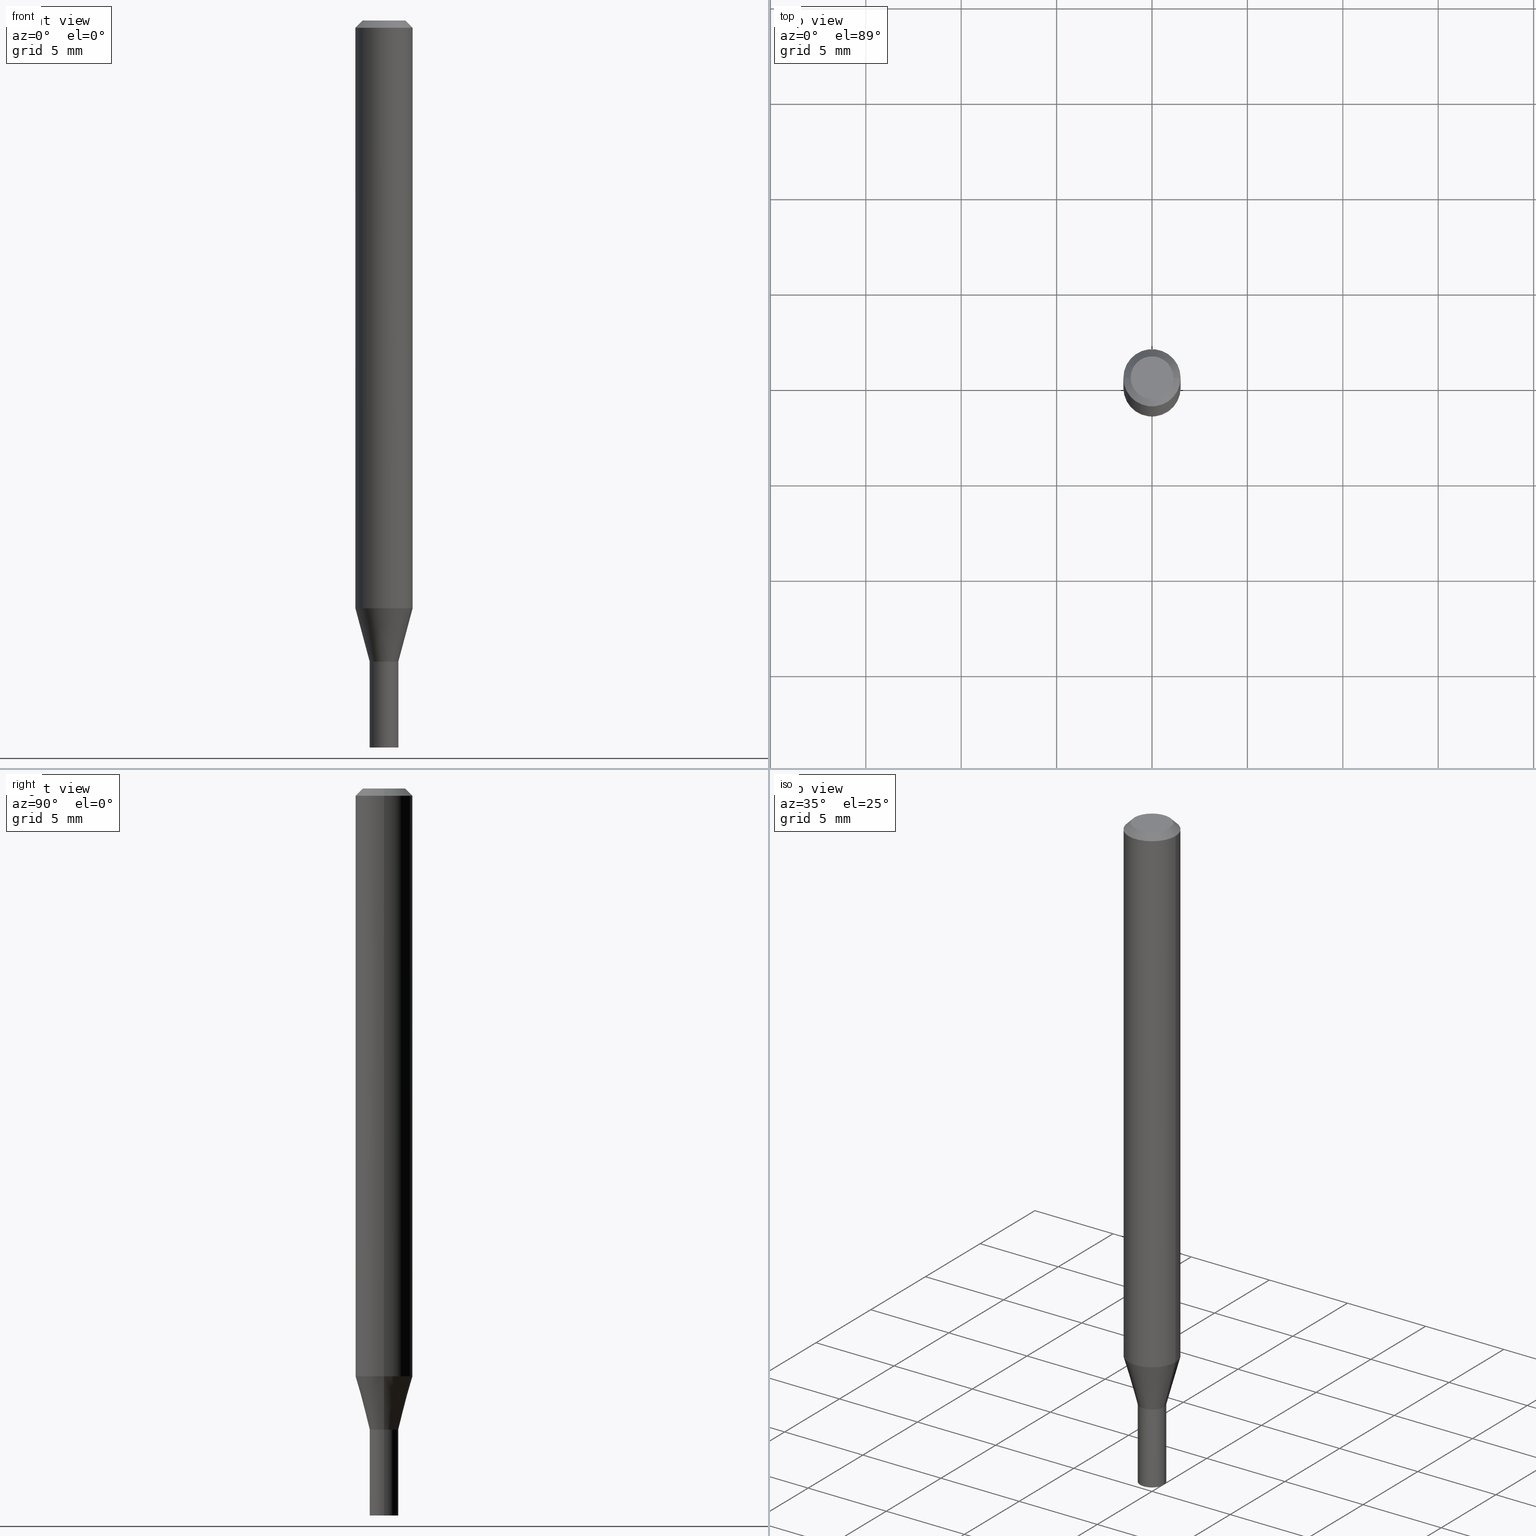
[diagram: canonical four-view strip — front | top / right | iso, engineering-drawing reading convention]
A machine part, canonical four-view strip (front | top / right | iso — engineering-drawing reading convention). The complete STEP part file that produces these views, byte-faithful:
ISO-10303-21;
HEADER;
FILE_DESCRIPTION (( 'STEP AP203' ),
    '1' );
FILE_NAME ('05104.STEP',
    '2024-03-14T17:54:21',
    ( '' ),
    ( '' ),
    'SwSTEP 2.0',
    'SolidWorks 2023',
    '' );
FILE_SCHEMA (( 'CONFIG_CONTROL_DESIGN' ));
ENDSEC;

DATA;
#1 = CARTESIAN_POINT ( 'NONE',  ( 0.000000000000000000, 0.000000000000000000, 0.000000000000000000 ) ) ;
#2 = PERSON_AND_ORGANIZATION ( #327, #109 ) ;
#3 = CARTESIAN_POINT ( 'NONE',  ( -0.02954999999999992355, 2.099653784171090617E-16, -1.453545319170320872E-30 ) ) ;
#4 = PLANE ( 'NONE',  #374 ) ;
#5 = DATE_TIME_ROLE ( 'creation_date' ) ;
#6 = CARTESIAN_POINT ( 'NONE',  ( -0.02954999999999999988, 2.099653784171096041E-16, -1.453545319170324550E-30 ) ) ;
#7 = CARTESIAN_POINT ( 'NONE',  ( 3.668203209277704895E-29, -5.237222008264718177E-15, -1.500000000000000222 ) ) ;
#8 = CIRCLE ( 'NONE', #194, 0.05904999999999999832 ) ;
#9 = CARTESIAN_POINT ( 'NONE',  ( -0.05904999999999999832, 3.599717260347268549E-16, -0.01499999999999999944 ) ) ;
#10 = ORIENTED_EDGE ( 'NONE', *, *, #34, .T. ) ;
#11 = EDGE_CURVE ( 'NONE', #390, #415, #324, .T. ) ;
#12 = DIRECTION ( 'NONE',  ( 1.000000000000000000, -6.982962677686273021E-15, 0.000000000000000000 ) ) ;
#13 = CARTESIAN_POINT ( 'NONE',  ( 3.233643402418606881E-29, -4.616785774352292931E-15, -1.322300000000000253 ) ) ;
#14 = DIRECTION ( 'NONE',  ( 1.000000000000000000, -6.982962677686277755E-15, 0.000000000000000000 ) ) ;
#15 = EDGE_CURVE ( 'NONE', #451, #385, #63, .T. ) ;
#16 = ORIENTED_EDGE ( 'NONE', *, *, #304, .F. ) ;
#17 = CONICAL_SURFACE ( 'NONE', #387, 0.02904999999999999943, 0.7853981633974739252 ) ;
#18 = PRODUCT ( '05104', '05104', '', ( #338 ) ) ;
#19 = FACE_OUTER_BOUND ( 'NONE', #355, .T. ) ;
#20 = EDGE_LOOP ( 'NONE', ( #88, #30, #134, #319 ) ) ;
#21 = FACE_OUTER_BOUND ( 'NONE', #121, .T. ) ;
#22 = VERTEX_POINT ( 'NONE', #60 ) ;
#23 = DIRECTION ( 'NONE',  ( 1.000000000000000000, -6.982962677686265922E-15, 4.876176775795935793E-29 ) ) ;
#24 = VECTOR ( 'NONE', #161, 39.37007874015748143 ) ;
#25 = DIRECTION ( 'NONE',  ( -2.445468806185136597E-29, 3.491481338843145583E-15, 1.000000000000000000 ) ) ;
#26 = ORIENTED_EDGE ( 'NONE', *, *, #148, .T. ) ;
#27 = DIRECTION ( 'NONE',  ( 1.000000000000000000, -6.982962677686280121E-15, 0.000000000000000000 ) ) ;
#28 = DIRECTION ( 'NONE',  ( -2.445468806185136597E-29, 3.491481338843145583E-15, 1.000000000000000000 ) ) ;
#29 = APPROVAL_STATUS ( 'not_yet_approved' ) ;
#30 = ORIENTED_EDGE ( 'NONE', *, *, #221, .T. ) ;
#31 = LOCAL_TIME ( 13, 54, 21.00000000000000000, #408 ) ;
#32 = DATE_TIME_ROLE ( 'classification_date' ) ;
#33 = CYLINDRICAL_SURFACE ( 'NONE', #45, 0.05904999999999999832 ) ;
#34 = EDGE_CURVE ( 'NONE', #392, #174, #58, .T. ) ;
#35 = CARTESIAN_POINT ( 'NONE',  ( 3.234866136821698561E-29, -4.618531515021712857E-15, -1.322800000000000198 ) ) ;
#36 = ORIENTED_EDGE ( 'NONE', *, *, #258, .F. ) ;
#37 = CIRCLE ( 'NONE', #91, 0.04404999999999999888 ) ;
#38 = AXIS2_PLACEMENT_3D ( 'NONE', #239, #48, #383 ) ;
#39 = PERSON_AND_ORGANIZATION ( #327, #109 ) ;
#40 = DIRECTION ( 'NONE',  ( 1.000000000000000000, -6.982962677686280121E-15, 0.000000000000000000 ) ) ;
#41 = DESIGN_CONTEXT ( 'detailed design', #240, 'design' ) ;
#42 = CARTESIAN_POINT ( 'NONE',  ( 0.02954999999999999988, -4.824878062147342468E-15, -1.322800000000000198 ) ) ;
#43 = DIRECTION ( 'NONE',  ( -2.445468806185136597E-29, 3.491481338843145583E-15, 1.000000000000000000 ) ) ;
#44 = ADVANCED_FACE ( 'NONE', ( #251 ), #459, .F. ) ;
#45 = AXIS2_PLACEMENT_3D ( 'NONE', #1, #50, #200 ) ;
#46 = CARTESIAN_POINT ( 'NONE',  ( 2.965631028747970028E-29, -4.234135135389597001E-15, -1.212704501176718130 ) ) ;
#47 = MANIFOLD_SOLID_BREP ( 'Body-Move/Copy2[1]', #130 ) ;
#48 = DIRECTION ( 'NONE',  ( -2.445468806185136597E-29, 3.491481338843145583E-15, 1.000000000000000000 ) ) ;
#49 = PRODUCT_RELATED_PRODUCT_CATEGORY ( 'detail', '', ( #18 ) ) ;
#50 = DIRECTION ( 'NONE',  ( -2.445468806185136597E-29, 3.491481338843145583E-15, 1.000000000000000000 ) ) ;
#51 = ORIENTED_EDGE ( 'NONE', *, *, #455, .F. ) ;
#52 = DIRECTION ( 'NONE',  ( -2.445468806185136597E-29, 3.491481338843145583E-15, 1.000000000000000000 ) ) ;
#53 = EDGE_CURVE ( 'NONE', #65, #197, #54, .T. ) ;
#54 = CIRCLE ( 'NONE', #210, 0.02954999999999999988 ) ;
#55 = ORIENTED_EDGE ( 'NONE', *, *, #258, .T. ) ;
#56 = AXIS2_PLACEMENT_3D ( 'NONE', #378, #193, #199 ) ;
#57 = DIRECTION ( 'NONE',  ( 2.445468806185136597E-29, -3.491481338843145583E-15, -1.000000000000000000 ) ) ;
#58 = LINE ( 'NONE', #98, #380 ) ;
#59 = DIRECTION ( 'NONE',  ( -2.445468806185136597E-29, 3.491481338843145583E-15, 1.000000000000000000 ) ) ;
#60 = CARTESIAN_POINT ( 'NONE',  ( 0.02954999999999999988, -5.443568555390347787E-15, -1.500000000000000222 ) ) ;
#61 = CC_DESIGN_PERSON_AND_ORGANIZATION_ASSIGNMENT ( #230, #431, ( #18 ) ) ;
#62 = CARTESIAN_POINT ( 'NONE',  ( -0.02954999999999992355, -4.111562893263929715E-15, -1.322799999999999976 ) ) ;
#63 = LINE ( 'NONE', #217, #253 ) ;
#64 = CARTESIAN_POINT ( 'NONE',  ( 3.234866136821698561E-29, -4.618531515021712857E-15, -1.322800000000000198 ) ) ;
#65 = VERTEX_POINT ( 'NONE', #285 ) ;
#66 = EDGE_LOOP ( 'NONE', ( #51, #16 ) ) ;
#67 = PERSON_AND_ORGANIZATION_ROLE ( 'classification_officer' ) ;
#68 = DIRECTION ( 'NONE',  ( -2.445468806185136597E-29, 3.491481338843145583E-15, 1.000000000000000000 ) ) ;
#69 = AXIS2_PLACEMENT_3D ( 'NONE', #35, #268, #78 ) ;
#70 = DATE_AND_TIME ( #153, #337 ) ;
#71 = CARTESIAN_POINT ( 'NONE',  ( 0.000000000000000000, 0.000000000000000000, 0.000000000000000000 ) ) ;
#72 = DIRECTION ( 'NONE',  ( 0.000000000000000000, 0.000000000000000000, 1.000000000000000000 ) ) ;
#73 = DIRECTION ( 'NONE',  ( 1.000000000000000000, -6.982962677686261977E-15, 0.000000000000000000 ) ) ;
#74 = APPROVAL_ROLE ( '' ) ;
#75 = FACE_OUTER_BOUND ( 'NONE', #425, .T. ) ;
#76 = VECTOR ( 'NONE', #302, 39.37007874015748143 ) ;
#77 = CALENDAR_DATE ( 2024, 14, 3 ) ;
#78 = DIRECTION ( 'NONE',  ( 1.000000000000000000, -6.982962677686265922E-15, 4.876176775795935793E-29 ) ) ;
#79 = CARTESIAN_POINT ( 'NONE',  ( -0.02954999999999992355, -4.406820395935182785E-15, -1.322300000000000253 ) ) ;
#80 = EDGE_CURVE ( 'NONE', #446, #392, #164, .T. ) ;
#81 = CARTESIAN_POINT ( 'NONE',  ( 0.02954999999999992355, -2.063465471256286490E-16, 1.440910237247695217E-30 ) ) ;
#82 = AXIS2_PLACEMENT_3D ( 'NONE', #265, #336, #294 ) ;
#83 = VECTOR ( 'NONE', #202, 39.37007874015748143 ) ;
#84 = CARTESIAN_POINT ( 'NONE',  ( -0.05904999999999999832, 4.195754854663391478E-16, -2.904631170795521892E-30 ) ) ;
#85 = ORIENTED_EDGE ( 'NONE', *, *, #334, .F. ) ;
#86 = DIRECTION ( 'NONE',  ( 1.000000000000000000, -6.982962677686266711E-15, 4.876176775795936353E-29 ) ) ;
#87 = CC_DESIGN_PERSON_AND_ORGANIZATION_ASSIGNMENT ( #2, #114, ( #171 ) ) ;
#88 = ORIENTED_EDGE ( 'NONE', *, *, #34, .F. ) ;
#89 = LINE ( 'NONE', #84, #314 ) ;
#90 = ORIENTED_EDGE ( 'NONE', *, *, #221, .F. ) ;
#91 = AXIS2_PLACEMENT_3D ( 'NONE', #266, #330, #107 ) ;
#92 = CARTESIAN_POINT ( 'NONE',  ( 3.668203209277705088E-31, -5.237222008264718399E-17, -0.01499999999999999944 ) ) ;
#93 = CC_DESIGN_APPROVAL ( #95, ( #245 ) ) ;
#94 = DIRECTION ( 'NONE',  ( 0.7071067811865656694, -2.468850131082446387E-15, 0.7071067811865294761 ) ) ;
#95 = APPROVAL ( #105, 'UNSPECIFIED' ) ;
#96 = CARTESIAN_POINT ( 'NONE',  ( 3.234866136821698001E-29, -4.618531515021712068E-15, -1.322799999999999976 ) ) ;
#97 = CYLINDRICAL_SURFACE ( 'NONE', #450, 0.02954999999999992355 ) ;
#98 = CARTESIAN_POINT ( 'NONE',  ( -0.02954999999999992355, -4.408566136604602711E-15, -1.322799999999999976 ) ) ;
#99 = ORIENTED_EDGE ( 'NONE', *, *, #15, .T. ) ;
#100 = ORIENTED_EDGE ( 'NONE', *, *, #80, .T. ) ;
#101 = CIRCLE ( 'NONE', #131, 0.02954999999999992355 ) ;
#102 = ADVANCED_FACE ( 'NONE', ( #113 ), #4, .F. ) ;
#103 = ORIENTED_EDGE ( 'NONE', *, *, #112, .T. ) ;
#104 = EDGE_CURVE ( 'NONE', #415, #390, #37, .T. ) ;
#105 = APPROVAL_STATUS ( 'not_yet_approved' ) ;
#106 = FACE_OUTER_BOUND ( 'NONE', #66, .T. ) ;
#107 = DIRECTION ( 'NONE',  ( 1.000000000000000000, -6.982962677686265922E-15, 4.819687581474398999E-29 ) ) ;
#108 = VECTOR ( 'NONE', #273, 39.37007874015748143 ) ;
#109 = ORGANIZATION ( 'UNSPECIFIED', 'UNSPECIFIED', '' ) ;
#110 = PERSON_AND_ORGANIZATION ( #327, #109 ) ;
#111 = DIRECTION ( 'NONE',  ( 1.000000000000000000, -6.982962677686266711E-15, 4.876176775795935793E-29 ) ) ;
#112 = EDGE_CURVE ( 'NONE', #358, #320, #224, .T. ) ;
#113 = FACE_OUTER_BOUND ( 'NONE', #135, .T. ) ;
#114 = PERSON_AND_ORGANIZATION_ROLE ( 'design_supplier' ) ;
#115 = FACE_OUTER_BOUND ( 'NONE', #361, .T. ) ;
#116 = AXIS2_PLACEMENT_3D ( 'NONE', #356, #170, #23 ) ;
#117 = AXIS2_PLACEMENT_3D ( 'NONE', #196, #420, #175 ) ;
#118 = DIRECTION ( 'NONE',  ( 2.438088387897960049E-29, -3.491481338843145188E-15, -1.000000000000000000 ) ) ;
#119 = CARTESIAN_POINT ( 'NONE',  ( 0.05904999999999999832, -4.574846268510561447E-16, -0.01499999999999999944 ) ) ;
#120 = DIRECTION ( 'NONE',  ( -0.7071067811865656694, 7.493145998870420424E-15, 0.7071067811865294761 ) ) ;
#121 = EDGE_LOOP ( 'NONE', ( #139, #255, #394, #127 ) ) ;
#122 = CC_DESIGN_APPROVAL ( #267, ( #171 ) ) ;
#123 = CARTESIAN_POINT ( 'NONE',  ( 3.234866136821698561E-29, -4.618531515021712857E-15, -1.322800000000000198 ) ) ;
#124 = ORIENTED_EDGE ( 'NONE', *, *, #207, .F. ) ;
#125 = PRODUCT_DEFINITION ( 'UNKNOWN', '', #171, #41 ) ;
#126 = CARTESIAN_POINT ( 'NONE',  ( 0.000000000000000000, 0.000000000000000000, 0.000000000000000000 ) ) ;
#127 = ORIENTED_EDGE ( 'NONE', *, *, #15, .F. ) ;
#128 =( CONVERSION_BASED_UNIT ( 'INCH', #216 ) LENGTH_UNIT ( ) NAMED_UNIT ( #212 ) );
#129 = ORIENTED_EDGE ( 'NONE', *, *, #112, .F. ) ;
#130 = CLOSED_SHELL ( 'NONE', ( #155, #44, #157, #344 ) ) ;
#131 = AXIS2_PLACEMENT_3D ( 'NONE', #13, #447, #277 ) ;
#132 = EDGE_LOOP ( 'NONE', ( #204, #215, #144, #461 ) ) ;
#133 = CARTESIAN_POINT ( 'NONE',  ( 3.234866136821698561E-29, -4.618531515021712857E-15, -1.322800000000000198 ) ) ;
#134 = ORIENTED_EDGE ( 'NONE', *, *, #323, .T. ) ;
#135 = EDGE_LOOP ( 'NONE', ( #421, #282 ) ) ;
#136 = CARTESIAN_POINT ( 'NONE',  ( 3.233643402418606881E-29, -4.616785774352292931E-15, -1.322300000000000253 ) ) ;
#137 = ORIENTED_EDGE ( 'NONE', *, *, #261, .T. ) ;
#138 = ADVANCED_FACE ( 'NONE', ( #182 ), #402, .T. ) ;
#139 = ORIENTED_EDGE ( 'NONE', *, *, #455, .T. ) ;
#140 = AXIS2_PLACEMENT_3D ( 'NONE', #438, #232, #441 ) ;
#141 = AXIS2_PLACEMENT_3D ( 'NONE', #151, #72, #333 ) ;
#142 = ADVANCED_FACE ( 'NONE', ( #115 ), #228, .T. ) ;
#143 = COORDINATED_UNIVERSAL_TIME_OFFSET ( 5, 0, .BEHIND. ) ;
#144 = ORIENTED_EDGE ( 'NONE', *, *, #311, .T. ) ;
#145 = DATE_AND_TIME ( #329, #303 ) ;
#146 = DIRECTION ( 'NONE',  ( 1.000000000000000000, -6.982962677686266711E-15, 4.876176775795935793E-29 ) ) ;
#147 = COORDINATED_UNIVERSAL_TIME_OFFSET ( 5, 0, .BEHIND. ) ;
#148 = EDGE_CURVE ( 'NONE', #392, #360, #262, .T. ) ;
#149 = DIRECTION ( 'NONE',  ( -2.445468806185136597E-29, 3.491481338843145583E-15, 1.000000000000000000 ) ) ;
#150 = AXIS2_PLACEMENT_3D ( 'NONE', #435, #432, #146 ) ;
#151 = CARTESIAN_POINT ( 'NONE',  ( 0.000000000000000000, 0.000000000000000000, 0.000000000000000000 ) ) ;
#152 = DIRECTION ( 'NONE',  ( -2.445468806185136877E-29, 3.491481338843145188E-15, 1.000000000000000000 ) ) ;
#153 = CALENDAR_DATE ( 2024, 14, 3 ) ;
#154 = DIRECTION ( 'NONE',  ( -2.445468806185136877E-29, 3.491481338843145188E-15, 1.000000000000000000 ) ) ;
#155 = ADVANCED_FACE ( 'NONE', ( #75 ), #227, .T. ) ;
#156 = AXIS2_PLACEMENT_3D ( 'NONE', #71, #368, #111 ) ;
#157 = ADVANCED_FACE ( 'NONE', ( #404 ), #190, .T. ) ;
#158 = CONICAL_SURFACE ( 'NONE', #56, 0.05904999999999999832, 0.7853981633974593812 ) ;
#159 = FACE_OUTER_BOUND ( 'NONE', #291, .T. ) ;
#160 = ORIENTED_EDGE ( 'NONE', *, *, #246, .F. ) ;
#161 = DIRECTION ( 'NONE',  ( -2.445468806185136877E-29, 3.491481338843145188E-15, 1.000000000000000000 ) ) ;
#162 = CARTESIAN_POINT ( 'NONE',  ( 0.05904999999999999832, -4.647161662000212105E-16, -0.01499999999999999944 ) ) ;
#163 = EDGE_CURVE ( 'NONE', #426, #22, #187, .T. ) ;
#164 = CIRCLE ( 'NONE', #448, 0.02954999999999992355 ) ;
#165 = CIRCLE ( 'NONE', #117, 0.05904999999999999832 ) ;
#166 = FACE_OUTER_BOUND ( 'NONE', #350, .T. ) ;
#167 = EDGE_CURVE ( 'NONE', #209, #320, #8, .T. ) ;
#168 = ORIENTED_EDGE ( 'NONE', *, *, #167, .T. ) ;
#169 =( NAMED_UNIT ( * ) PLANE_ANGLE_UNIT ( ) SI_UNIT ( $, .RADIAN. ) );
#170 = DIRECTION ( 'NONE',  ( -2.438088387897960049E-29, 3.491481338843145188E-15, 1.000000000000000000 ) ) ;
#171 = PRODUCT_DEFINITION_FORMATION_WITH_SPECIFIED_SOURCE ( 'ANY', '', #18, .NOT_KNOWN. ) ;
#172 = CARTESIAN_POINT ( 'NONE',  ( 3.234866136821698561E-29, -4.618531515021712857E-15, -1.322800000000000198 ) ) ;
#173 = DIRECTION ( 'NONE',  ( 1.000000000000000000, -6.982962677686277755E-15, 0.000000000000000000 ) ) ;
#174 = VERTEX_POINT ( 'NONE', #339 ) ;
#175 = DIRECTION ( 'NONE',  ( 1.000000000000000000, -6.982962677686266711E-15, 0.000000000000000000 ) ) ;
#176 = EDGE_CURVE ( 'NONE', #426, #65, #301, .T. ) ;
#177 = DIRECTION ( 'NONE',  ( 1.000000000000000000, -6.982962677686265922E-15, 4.819687581474398999E-29 ) ) ;
#178 = EDGE_LOOP ( 'NONE', ( #419, #247, #256, #168 ) ) ;
#179 = CIRCLE ( 'NONE', #275, 0.02954999999999999988 ) ;
#180 = AXIS2_PLACEMENT_3D ( 'NONE', #345, #118, #306 ) ;
#181 = COORDINATED_UNIVERSAL_TIME_OFFSET ( 5, 0, .BEHIND. ) ;
#182 = FACE_OUTER_BOUND ( 'NONE', #20, .T. ) ;
#183 = PERSON_AND_ORGANIZATION ( #327, #109 ) ;
#184 = CARTESIAN_POINT ( 'NONE',  ( 0.05904999999999999832, -4.123439461173740327E-16, 2.879382386107500220E-30 ) ) ;
#185 = CALENDAR_DATE ( 2024, 14, 3 ) ;
#186 = DIRECTION ( 'NONE',  ( -2.445468806185136597E-29, 3.491481338843145583E-15, 1.000000000000000000 ) ) ;
#187 = CIRCLE ( 'NONE', #362, 0.02954999999999999988 ) ;
#188 = APPROVAL_PERSON_ORGANIZATION ( #39, #428, #74 ) ;
#189 = DATE_AND_TIME ( #185, #276 ) ;
#190 = CYLINDRICAL_SURFACE ( 'NONE', #156, 0.02954999999999999988 ) ;
#191 = CARTESIAN_POINT ( 'NONE',  ( 3.075995059520799729E-16, 0.04404999999999999888, -3.177616157090649282E-16 ) ) ;
#192 = ADVANCED_FACE ( 'NONE', ( #106 ), #377, .F. ) ;
#193 = DIRECTION ( 'NONE',  ( 2.445468806185136597E-29, -3.491481338843145583E-15, -1.000000000000000000 ) ) ;
#194 = AXIS2_PLACEMENT_3D ( 'NONE', #406, #371, #375 ) ;
#195 = AXIS2_PLACEMENT_3D ( 'NONE', #64, #391, #396 ) ;
#196 = CARTESIAN_POINT ( 'NONE',  ( 3.668203209277705088E-31, -5.237222008264718399E-17, -0.01499999999999999944 ) ) ;
#197 = VERTEX_POINT ( 'NONE', #42 ) ;
#198 = CC_DESIGN_DATE_AND_TIME_ASSIGNMENT ( #257, #5, ( #125 ) ) ;
#199 = DIRECTION ( 'NONE',  ( -1.000000000000000000, 6.982962677686266711E-15, 0.000000000000000000 ) ) ;
#200 = DIRECTION ( 'NONE',  ( 1.000000000000000000, -6.982962677686266711E-15, 4.876176775795936353E-29 ) ) ;
#201 =( GEOMETRIC_REPRESENTATION_CONTEXT ( 3 ) GLOBAL_UNCERTAINTY_ASSIGNED_CONTEXT ( ( #366 ) ) GLOBAL_UNIT_ASSIGNED_CONTEXT ( ( #128, #169, #456 ) ) REPRESENTATION_CONTEXT ( 'NONE', 'WORKASPACE' ) );
#202 = DIRECTION ( 'NONE',  ( -0.7071067811865553443, 2.468850131082339102E-15, -0.7071067811865396902 ) ) ;
#203 = ORIENTED_EDGE ( 'NONE', *, *, #422, .T. ) ;
#204 = ORIENTED_EDGE ( 'NONE', *, *, #176, .F. ) ;
#205 = CARTESIAN_POINT ( 'NONE',  ( 0.02904999999999999943, -4.821386580808499461E-15, -1.322800000000000198 ) ) ;
#206 = DIRECTION ( 'NONE',  ( -0.2588190451025215721, 5.211531920934551831E-15, 0.9659258262890679791 ) ) ;
#207 = EDGE_CURVE ( 'NONE', #22, #426, #179, .T. ) ;
#208 = DIRECTION ( 'NONE',  ( -1.000000000000000000, 6.982962677686266711E-15, 0.000000000000000000 ) ) ;
#209 = VERTEX_POINT ( 'NONE', #259 ) ;
#210 = AXIS2_PLACEMENT_3D ( 'NONE', #172, #313, #457 ) ;
#211 = DIRECTION ( 'NONE',  ( -2.445468806185136597E-29, 3.491481338843145583E-15, 1.000000000000000000 ) ) ;
#212 = DIMENSIONAL_EXPONENTS ( 1.000000000000000000, 0.000000000000000000, 0.000000000000000000, 0.000000000000000000, 0.000000000000000000, 0.000000000000000000, 0.000000000000000000 ) ;
#213 = AXIS2_PLACEMENT_3D ( 'NONE', #46, #52, #12 ) ;
#214 = CARTESIAN_POINT ( 'NONE',  ( 8.019272414352406998E-45, -1.144939568028632061E-30, -3.279237254660487495E-16 ) ) ;
#215 = ORIENTED_EDGE ( 'NONE', *, *, #163, .T. ) ;
#216 = LENGTH_MEASURE_WITH_UNIT ( LENGTH_MEASURE( 0.02539999999999999897 ), #398 );
#217 = CARTESIAN_POINT ( 'NONE',  ( 0.02904999999999999943, -4.821386580808499461E-15, -1.322800000000000198 ) ) ;
#218 = APPROVAL_ROLE ( '' ) ;
#219 = CLOSED_SHELL ( 'NONE', ( #369, #417, #281, #226, #142, #138, #357, #434, #102, #192, #279, #442 ) ) ;
#220 = DIRECTION ( 'NONE',  ( 1.000000000000000000, -6.982962677686280121E-15, 0.000000000000000000 ) ) ;
#221 = EDGE_CURVE ( 'NONE', #392, #446, #335, .T. ) ;
#222 = COORDINATED_UNIVERSAL_TIME_OFFSET ( 5, 0, .BEHIND. ) ;
#223 = DIRECTION ( 'NONE',  ( -2.445468806185136877E-29, 3.491481338843145188E-15, 1.000000000000000000 ) ) ;
#224 = LINE ( 'NONE', #184, #386 ) ;
#225 = ORIENTED_EDGE ( 'NONE', *, *, #466, .T. ) ;
#226 = ADVANCED_FACE ( 'NONE', ( #365 ), #33, .T. ) ;
#227 = CYLINDRICAL_SURFACE ( 'NONE', #150, 0.02954999999999999988 ) ;
#228 = CONICAL_SURFACE ( 'NONE', #82, 0.02954999999999992355, 0.2617993877991502960 ) ;
#229 = CONICAL_SURFACE ( 'NONE', #38, 0.02904999999999999943, 0.7853981633974739252 ) ;
#230 = PERSON_AND_ORGANIZATION ( #327, #109 ) ;
#231 = EDGE_CURVE ( 'NONE', #454, #360, #382, .T. ) ;
#232 = DIRECTION ( 'NONE',  ( -2.445468806185136597E-29, 3.491481338843145583E-15, 1.000000000000000000 ) ) ;
#233 = FACE_OUTER_BOUND ( 'NONE', #278, .T. ) ;
#234 = CARTESIAN_POINT ( 'NONE',  ( 0.02954999999999992355, -4.824878062147340890E-15, -1.322799999999999976 ) ) ;
#235 = ORIENTED_EDGE ( 'NONE', *, *, #148, .F. ) ;
#236 = CC_DESIGN_PERSON_AND_ORGANIZATION_ASSIGNMENT ( #110, #67, ( #245 ) ) ;
#237 = AXIS2_PLACEMENT_3D ( 'NONE', #348, #271, #241 ) ;
#238 = APPROVAL_PERSON_ORGANIZATION ( #325, #95, #364 ) ;
#239 = CARTESIAN_POINT ( 'NONE',  ( 3.234866136821698561E-29, -4.618531515021712857E-15, -1.322800000000000198 ) ) ;
#240 = APPLICATION_CONTEXT ( 'configuration controlled 3d designs of mechanical parts and assemblies' ) ;
#241 = DIRECTION ( 'NONE',  ( 1.000000000000000000, -6.982962677686273021E-15, 0.000000000000000000 ) ) ;
#242 = CARTESIAN_POINT ( 'NONE',  ( -0.02904999999999999943, -4.412118850283403609E-15, -1.322800000000000198 ) ) ;
#243 = EDGE_LOOP ( 'NONE', ( #462, #289, #274, #129 ) ) ;
#244 = CIRCLE ( 'NONE', #263, 0.02904999999999999943 ) ;
#245 = SECURITY_CLASSIFICATION ( '', '', #296 ) ;
#246 = EDGE_CURVE ( 'NONE', #174, #209, #89, .T. ) ;
#247 = ORIENTED_EDGE ( 'NONE', *, *, #104, .F. ) ;
#248 = CARTESIAN_POINT ( 'NONE',  ( 0.04404999999999999888, -3.798447818264465995E-16, -3.279237254660463336E-16 ) ) ;
#249 = ORIENTED_EDGE ( 'NONE', *, *, #304, .T. ) ;
#250 = DIRECTION ( 'NONE',  ( -2.445468806185136597E-29, 3.491481338843145583E-15, 1.000000000000000000 ) ) ;
#251 = FACE_OUTER_BOUND ( 'NONE', #286, .T. ) ;
#252 = ORIENTED_EDGE ( 'NONE', *, *, #316, .T. ) ;
#253 = VECTOR ( 'NONE', #94, 39.37007874015748143 ) ;
#254 = AXIS2_PLACEMENT_3D ( 'NONE', #136, #59, #27 ) ;
#255 = ORIENTED_EDGE ( 'NONE', *, *, #231, .T. ) ;
#256 = ORIENTED_EDGE ( 'NONE', *, *, #334, .T. ) ;
#257 = DATE_AND_TIME ( #437, #410 ) ;
#258 = EDGE_CURVE ( 'NONE', #446, #385, #280, .T. ) ;
#259 = CARTESIAN_POINT ( 'NONE',  ( -0.05904999999999999832, -1.723678192269782942E-15, -0.01499999999999999944 ) ) ;
#260 = VECTOR ( 'NONE', #120, 39.37007874015748143 ) ;
#261 = EDGE_CURVE ( 'NONE', #174, #358, #436, .T. ) ;
#262 = LINE ( 'NONE', #3, #409 ) ;
#263 = AXIS2_PLACEMENT_3D ( 'NONE', #393, #211, #173 ) ;
#264 = DATE_AND_TIME ( #77, #31 ) ;
#265 = CARTESIAN_POINT ( 'NONE',  ( 3.234866136821698001E-29, -4.618531515021712068E-15, -1.322799999999999976 ) ) ;
#266 = CARTESIAN_POINT ( 'NONE',  ( 8.019272414352406998E-45, -1.144939568028632061E-30, -3.279237254660487495E-16 ) ) ;
#267 = APPROVAL ( #29, 'UNSPECIFIED' ) ;
#268 = DIRECTION ( 'NONE',  ( -2.438088387897960049E-29, 3.491481338843145188E-15, 1.000000000000000000 ) ) ;
#269 = CIRCLE ( 'NONE', #195, 0.02954999999999999988 ) ;
#270 = CARTESIAN_POINT ( 'NONE',  ( 0.000000000000000000, 0.000000000000000000, 0.000000000000000000 ) ) ;
#271 = DIRECTION ( 'NONE',  ( -2.445468806185136597E-29, 3.491481338843145583E-15, 1.000000000000000000 ) ) ;
#272 = CC_DESIGN_DATE_AND_TIME_ASSIGNMENT ( #264, #32, ( #245 ) ) ;
#273 = DIRECTION ( 'NONE',  ( -2.445468806185136877E-29, 3.491481338843145188E-15, 1.000000000000000000 ) ) ;
#274 = ORIENTED_EDGE ( 'NONE', *, *, #389, .F. ) ;
#275 = AXIS2_PLACEMENT_3D ( 'NONE', #7, #332, #340 ) ;
#276 = LOCAL_TIME ( 13, 54, 21.00000000000000000, #222 ) ;
#277 = DIRECTION ( 'NONE',  ( 1.000000000000000000, -6.982962677686280121E-15, 0.000000000000000000 ) ) ;
#278 = EDGE_LOOP ( 'NONE', ( #90, #26, #252, #36 ) ) ;
#279 = ADVANCED_FACE ( 'NONE', ( #159 ), #229, .T. ) ;
#280 = LINE ( 'NONE', #81, #108 ) ;
#281 = ADVANCED_FACE ( 'NONE', ( #414 ), #158, .T. ) ;
#282 = ORIENTED_EDGE ( 'NONE', *, *, #11, .T. ) ;
#283 = DIRECTION ( 'NONE',  ( 1.000000000000000000, -6.982962677686266711E-15, 4.876176775795935793E-29 ) ) ;
#284 = AXIS2_PLACEMENT_3D ( 'NONE', #214, #28, #177 ) ;
#285 = CARTESIAN_POINT ( 'NONE',  ( -0.02954999999999999988, -4.717911383226106554E-15, -1.322800000000000198 ) ) ;
#286 = EDGE_LOOP ( 'NONE', ( #124, #346 ) ) ;
#287 = ORIENTED_EDGE ( 'NONE', *, *, #328, .T. ) ;
#288 = FACE_OUTER_BOUND ( 'NONE', #354, .T. ) ;
#289 = ORIENTED_EDGE ( 'NONE', *, *, #246, .T. ) ;
#290 = PERSON_AND_ORGANIZATION_ROLE ( 'creator' ) ;
#291 = EDGE_LOOP ( 'NONE', ( #427, #249, #99, #423 ) ) ;
#292 = EDGE_CURVE ( 'NONE', #358, #174, #376, .T. ) ;
#293 = APPROVAL_DATE_TIME ( #145, #95 ) ;
#294 = DIRECTION ( 'NONE',  ( 1.000000000000000000, -6.982962677686280121E-15, 0.000000000000000000 ) ) ;
#295 = APPLICATION_CONTEXT ( 'configuration controlled 3d designs of mechanical parts and assemblies' ) ;
#296 = SECURITY_CLASSIFICATION_LEVEL ( 'unclassified' ) ;
#297 = VECTOR ( 'NONE', #154, 39.37007874015748143 ) ;
#298 = VECTOR ( 'NONE', #307, 39.37007874015748143 ) ;
#299 = CARTESIAN_POINT ( 'NONE',  ( 3.668203209277704895E-29, -5.237222008264718177E-15, -1.500000000000000222 ) ) ;
#300 = APPROVAL_DATE_TIME ( #70, #267 ) ;
#301 = LINE ( 'NONE', #6, #297 ) ;
#302 = DIRECTION ( 'NONE',  ( 0.2588190451025215721, 1.565188264969619995E-15, 0.9659258262890679791 ) ) ;
#303 = LOCAL_TIME ( 13, 54, 21.00000000000000000, #181 ) ;
#304 = EDGE_CURVE ( 'NONE', #454, #451, #343, .T. ) ;
#305 = LINE ( 'NONE', #234, #76 ) ;
#306 = DIRECTION ( 'NONE',  ( -1.000000000000000000, 6.982962677686265922E-15, -4.876176775795935793E-29 ) ) ;
#307 = DIRECTION ( 'NONE',  ( 0.7071067811865553443, -7.319954787623282867E-15, -0.7071067811865396902 ) ) ;
#308 = AXIS2_PLACEMENT_3D ( 'NONE', #401, #68, #220 ) ;
#309 = AXIS2_PLACEMENT_3D ( 'NONE', #126, #342, #412 ) ;
#310 = CARTESIAN_POINT ( 'NONE',  ( 0.05904999999999999832, -4.646479081506971132E-15, -1.212704501176718130 ) ) ;
#311 = EDGE_CURVE ( 'NONE', #22, #197, #347, .T. ) ;
#312 = CARTESIAN_POINT ( 'NONE',  ( -0.02954999999999999988, -4.717911383226106554E-15, -1.500000000000000222 ) ) ;
#313 = DIRECTION ( 'NONE',  ( -2.445468806185136597E-29, 3.491481338843145583E-15, 1.000000000000000000 ) ) ;
#314 = VECTOR ( 'NONE', #353, 39.37007874015748143 ) ;
#315 = CIRCLE ( 'NONE', #254, 0.02954999999999992355 ) ;
#316 = EDGE_CURVE ( 'NONE', #360, #385, #101, .T. ) ;
#317 = CARTESIAN_POINT ( 'NONE',  ( 0.02954999999999992355, -4.824878062147340890E-15, -1.322799999999999976 ) ) ;
#318 = ORIENTED_EDGE ( 'NONE', *, *, #311, .F. ) ;
#319 = ORIENTED_EDGE ( 'NONE', *, *, #261, .F. ) ;
#320 = VERTEX_POINT ( 'NONE', #162 ) ;
#321 = CARTESIAN_POINT ( 'NONE',  ( 0.000000000000000000, 0.000000000000000000, 0.000000000000000000 ) ) ;
#322 = ORIENTED_EDGE ( 'NONE', *, *, #422, .F. ) ;
#323 = EDGE_CURVE ( 'NONE', #446, #358, #305, .T. ) ;
#324 = CIRCLE ( 'NONE', #284, 0.04404999999999999888 ) ;
#325 = PERSON_AND_ORGANIZATION ( #327, #109 ) ;
#326 = ORIENTED_EDGE ( 'NONE', *, *, #207, .T. ) ;
#327 = PERSON ( 'UNSPECIFIED', 'UNSPECIFIED', 'UNSPECIFIED', ('UNSPECIFIED'), ('UNSPECIFIED'), ('UNSPECIFIED') ) ;
#328 = EDGE_CURVE ( 'NONE', #390, #320, #443, .T. ) ;
#329 = CALENDAR_DATE ( 2024, 14, 3 ) ;
#330 = DIRECTION ( 'NONE',  ( -2.445468806185136597E-29, 3.491481338843145583E-15, 1.000000000000000000 ) ) ;
#331 = PERSON_AND_ORGANIZATION ( #327, #109 ) ;
#332 = DIRECTION ( 'NONE',  ( -2.445468806185136597E-29, 3.491481338843145583E-15, 1.000000000000000000 ) ) ;
#333 = DIRECTION ( 'NONE',  ( 1.000000000000000000, 0.000000000000000000, 0.000000000000000000 ) ) ;
#334 = EDGE_CURVE ( 'NONE', #415, #209, #384, .T. ) ;
#335 = CIRCLE ( 'NONE', #308, 0.02954999999999992355 ) ;
#336 = DIRECTION ( 'NONE',  ( -2.445468806185136597E-29, 3.491481338843145583E-15, 1.000000000000000000 ) ) ;
#337 = LOCAL_TIME ( 13, 54, 21.00000000000000000, #143 ) ;
#338 = MECHANICAL_CONTEXT ( 'NONE', #295, 'mechanical' ) ;
#339 = CARTESIAN_POINT ( 'NONE',  ( -0.05904999999999999832, -3.814559649923256719E-15, -1.212704501176718130 ) ) ;
#340 = DIRECTION ( 'NONE',  ( 1.000000000000000000, -6.982962677686261977E-15, 0.000000000000000000 ) ) ;
#341 = CC_DESIGN_PERSON_AND_ORGANIZATION_ASSIGNMENT ( #440, #290, ( #171 ) ) ;
#342 = DIRECTION ( 'NONE',  ( -2.445468806185136597E-29, 3.491481338843145583E-15, 1.000000000000000000 ) ) ;
#343 = CIRCLE ( 'NONE', #416, 0.02904999999999999943 ) ;
#344 = ADVANCED_FACE ( 'NONE', ( #19 ), #445, .F. ) ;
#345 = CARTESIAN_POINT ( 'NONE',  ( 2.063465471256615347E-16, 0.02954999999999538204, -1.322800000000000198 ) ) ;
#346 = ORIENTED_EDGE ( 'NONE', *, *, #163, .F. ) ;
#347 = LINE ( 'NONE', #444, #24 ) ;
#348 = CARTESIAN_POINT ( 'NONE',  ( 2.965631028747970028E-29, -4.234135135389597001E-15, -1.212704501176718130 ) ) ;
#349 = CC_DESIGN_PERSON_AND_ORGANIZATION_ASSIGNMENT ( #331, #405, ( #125 ) ) ;
#350 = EDGE_LOOP ( 'NONE', ( #160, #137, #103, #399 ) ) ;
#351 = CONICAL_SURFACE ( 'NONE', #458, 0.05904999999999999832, 0.7853981633974593812 ) ;
#352 = ADVANCED_BREP_SHAPE_REPRESENTATION ( '05104', ( #47, #367, #141 ), #201 ) ;
#353 = DIRECTION ( 'NONE',  ( -2.445468806185136877E-29, 3.491481338843145188E-15, 1.000000000000000000 ) ) ;
#354 = EDGE_LOOP ( 'NONE', ( #235, #465, #55, #225 ) ) ;
#355 = EDGE_LOOP ( 'NONE', ( #203, #413 ) ) ;
#356 = CARTESIAN_POINT ( 'NONE',  ( 3.576687321579069994E-29, -5.368277968210015545E-15, -1.500000000000000222 ) ) ;
#357 = ADVANCED_FACE ( 'NONE', ( #166 ), #418, .T. ) ;
#358 = VERTEX_POINT ( 'NONE', #310 ) ;
#359 = CARTESIAN_POINT ( 'NONE',  ( -0.02904999999999999943, -4.409469623109293197E-15, -1.322800000000000198 ) ) ;
#360 = VERTEX_POINT ( 'NONE', #79 ) ;
#361 = EDGE_LOOP ( 'NONE', ( #100, #10, #430, #453 ) ) ;
#362 = AXIS2_PLACEMENT_3D ( 'NONE', #299, #149, #73 ) ;
#363 = CC_DESIGN_SECURITY_CLASSIFICATION ( #245, ( #171 ) ) ;
#364 = APPROVAL_ROLE ( '' ) ;
#365 = FACE_OUTER_BOUND ( 'NONE', #243, .T. ) ;
#366 = UNCERTAINTY_MEASURE_WITH_UNIT (LENGTH_MEASURE( 1.000000000000000082E-05 ), #128, 'distance_accuracy_value', 'NONE');
#367 = MANIFOLD_SOLID_BREP ( 'Body-Move/Copy2[2]', #219 ) ;
#368 = DIRECTION ( 'NONE',  ( -2.445468806185136597E-29, 3.491481338843145583E-15, 1.000000000000000000 ) ) ;
#369 = ADVANCED_FACE ( 'NONE', ( #233 ), #452, .F. ) ;
#370 = APPROVAL_DATE_TIME ( #189, #428 ) ;
#371 = DIRECTION ( 'NONE',  ( -2.445468806185136597E-29, 3.491481338843145583E-15, 1.000000000000000000 ) ) ;
#372 = ORIENTED_EDGE ( 'NONE', *, *, #11, .F. ) ;
#373 = APPLICATION_PROTOCOL_DEFINITION ( 'international standard', 'config_control_design', 1994, #295 ) ;
#374 = AXIS2_PLACEMENT_3D ( 'NONE', #191, #439, #407 ) ;
#375 = DIRECTION ( 'NONE',  ( 1.000000000000000000, -6.982962677686266711E-15, 0.000000000000000000 ) ) ;
#376 = CIRCLE ( 'NONE', #213, 0.05904999999999999832 ) ;
#377 = PLANE ( 'NONE',  #69 ) ;
#378 = CARTESIAN_POINT ( 'NONE',  ( 3.668203209277705088E-31, -5.237222008264718399E-17, -0.01499999999999999944 ) ) ;
#379 = CARTESIAN_POINT ( 'NONE',  ( 0.02954999999999992355, -4.823132321477920964E-15, -1.322300000000000253 ) ) ;
#380 = VECTOR ( 'NONE', #206, 39.37007874015748143 ) ;
#381 = PRODUCT_DEFINITION_SHAPE ( 'NONE', 'NONE',  #125 ) ;
#382 = LINE ( 'NONE', #242, #260 ) ;
#383 = DIRECTION ( 'NONE',  ( 1.000000000000000000, -6.982962677686277755E-15, 0.000000000000000000 ) ) ;
#384 = LINE ( 'NONE', #9, #83 ) ;
#385 = VERTEX_POINT ( 'NONE', #379 ) ;
#386 = VECTOR ( 'NONE', #152, 39.37007874015748143 ) ;
#387 = AXIS2_PLACEMENT_3D ( 'NONE', #133, #250, #424 ) ;
#388 = ORIENTED_EDGE ( 'NONE', *, *, #176, .T. ) ;
#389 = EDGE_CURVE ( 'NONE', #320, #209, #165, .T. ) ;
#390 = VERTEX_POINT ( 'NONE', #248 ) ;
#391 = DIRECTION ( 'NONE',  ( -2.445468806185136597E-29, 3.491481338843145583E-15, 1.000000000000000000 ) ) ;
#392 = VERTEX_POINT ( 'NONE', #62 ) ;
#393 = CARTESIAN_POINT ( 'NONE',  ( 3.234866136821698561E-29, -4.618531515021712857E-15, -1.322800000000000198 ) ) ;
#394 = ORIENTED_EDGE ( 'NONE', *, *, #466, .F. ) ;
#395 = CC_DESIGN_APPROVAL ( #428, ( #125 ) ) ;
#396 = DIRECTION ( 'NONE',  ( 1.000000000000000000, -6.982962677686261977E-15, 0.000000000000000000 ) ) ;
#397 = EDGE_LOOP ( 'NONE', ( #372, #287, #449, #85 ) ) ;
#398 =( LENGTH_UNIT ( ) NAMED_UNIT ( * ) SI_UNIT ( $, .METRE. ) );
#399 = ORIENTED_EDGE ( 'NONE', *, *, #167, .F. ) ;
#400 = APPROVAL_STATUS ( 'not_yet_approved' ) ;
#401 = CARTESIAN_POINT ( 'NONE',  ( 3.234866136821698001E-29, -4.618531515021712068E-15, -1.322799999999999976 ) ) ;
#402 = CONICAL_SURFACE ( 'NONE', #140, 0.02954999999999992355, 0.2617993877991502960 ) ;
#403 = AXIS2_PLACEMENT_3D ( 'NONE', #270, #411, #86 ) ;
#404 = FACE_OUTER_BOUND ( 'NONE', #132, .T. ) ;
#405 = PERSON_AND_ORGANIZATION_ROLE ( 'creator' ) ;
#406 = CARTESIAN_POINT ( 'NONE',  ( 3.668203209277705088E-31, -5.237222008264718399E-17, -0.01499999999999999944 ) ) ;
#407 = DIRECTION ( 'NONE',  ( -1.000000000000000000, 6.982962677686265922E-15, -4.876176775795935793E-29 ) ) ;
#408 = COORDINATED_UNIVERSAL_TIME_OFFSET ( 5, 0, .BEHIND. ) ;
#409 = VECTOR ( 'NONE', #223, 39.37007874015748143 ) ;
#410 = LOCAL_TIME ( 13, 54, 21.00000000000000000, #147 ) ;
#411 = DIRECTION ( 'NONE',  ( -2.445468806185136597E-29, 3.491481338843145583E-15, 1.000000000000000000 ) ) ;
#412 = DIRECTION ( 'NONE',  ( 1.000000000000000000, -6.982962677686266711E-15, 4.876176775795935793E-29 ) ) ;
#413 = ORIENTED_EDGE ( 'NONE', *, *, #53, .T. ) ;
#414 = FACE_OUTER_BOUND ( 'NONE', #397, .T. ) ;
#415 = VERTEX_POINT ( 'NONE', #460 ) ;
#416 = AXIS2_PLACEMENT_3D ( 'NONE', #123, #43, #14 ) ;
#417 = ADVANCED_FACE ( 'NONE', ( #21 ), #17, .T. ) ;
#418 = CYLINDRICAL_SURFACE ( 'NONE', #403, 0.05904999999999999832 ) ;
#419 = ORIENTED_EDGE ( 'NONE', *, *, #328, .F. ) ;
#420 = DIRECTION ( 'NONE',  ( -2.445468806185136597E-29, 3.491481338843145583E-15, 1.000000000000000000 ) ) ;
#421 = ORIENTED_EDGE ( 'NONE', *, *, #104, .T. ) ;
#422 = EDGE_CURVE ( 'NONE', #197, #65, #269, .T. ) ;
#423 = ORIENTED_EDGE ( 'NONE', *, *, #316, .F. ) ;
#424 = DIRECTION ( 'NONE',  ( 1.000000000000000000, -6.982962677686277755E-15, 0.000000000000000000 ) ) ;
#425 = EDGE_LOOP ( 'NONE', ( #326, #388, #322, #318 ) ) ;
#426 = VERTEX_POINT ( 'NONE', #312 ) ;
#427 = ORIENTED_EDGE ( 'NONE', *, *, #231, .F. ) ;
#428 = APPROVAL ( #400, 'UNSPECIFIED' ) ;
#429 = FACE_OUTER_BOUND ( 'NONE', #178, .T. ) ;
#430 = ORIENTED_EDGE ( 'NONE', *, *, #292, .F. ) ;
#431 = PERSON_AND_ORGANIZATION_ROLE ( 'design_owner' ) ;
#432 = DIRECTION ( 'NONE',  ( -2.445468806185136597E-29, 3.491481338843145583E-15, 1.000000000000000000 ) ) ;
#433 = SHAPE_DEFINITION_REPRESENTATION ( #381, #352 ) ;
#434 = ADVANCED_FACE ( 'NONE', ( #429 ), #351, .T. ) ;
#435 = CARTESIAN_POINT ( 'NONE',  ( 0.000000000000000000, 0.000000000000000000, 0.000000000000000000 ) ) ;
#436 = CIRCLE ( 'NONE', #237, 0.05904999999999999832 ) ;
#437 = CALENDAR_DATE ( 2024, 14, 3 ) ;
#438 = CARTESIAN_POINT ( 'NONE',  ( 3.234866136821698001E-29, -4.618531515021712068E-15, -1.322799999999999976 ) ) ;
#439 = DIRECTION ( 'NONE',  ( 2.438088387897960049E-29, -3.491481338843145188E-15, -1.000000000000000000 ) ) ;
#440 = PERSON_AND_ORGANIZATION ( #327, #109 ) ;
#441 = DIRECTION ( 'NONE',  ( 1.000000000000000000, -6.982962677686280121E-15, 0.000000000000000000 ) ) ;
#442 = ADVANCED_FACE ( 'NONE', ( #288 ), #97, .F. ) ;
#443 = LINE ( 'NONE', #119, #298 ) ;
#444 = CARTESIAN_POINT ( 'NONE',  ( 0.02954999999999999988, -2.063465471256291914E-16, 1.440910237247699070E-30 ) ) ;
#445 = PLANE ( 'NONE',  #180 ) ;
#446 = VERTEX_POINT ( 'NONE', #317 ) ;
#447 = DIRECTION ( 'NONE',  ( -2.445468806185136597E-29, 3.491481338843145583E-15, 1.000000000000000000 ) ) ;
#448 = AXIS2_PLACEMENT_3D ( 'NONE', #96, #186, #40 ) ;
#449 = ORIENTED_EDGE ( 'NONE', *, *, #389, .T. ) ;
#450 = AXIS2_PLACEMENT_3D ( 'NONE', #321, #25, #283 ) ;
#451 = VERTEX_POINT ( 'NONE', #205 ) ;
#452 = CYLINDRICAL_SURFACE ( 'NONE', #309, 0.02954999999999992355 ) ;
#453 = ORIENTED_EDGE ( 'NONE', *, *, #323, .F. ) ;
#454 = VERTEX_POINT ( 'NONE', #359 ) ;
#455 = EDGE_CURVE ( 'NONE', #451, #454, #244, .T. ) ;
#456 =( NAMED_UNIT ( * ) SI_UNIT ( $, .STERADIAN. ) SOLID_ANGLE_UNIT ( ) );
#457 = DIRECTION ( 'NONE',  ( 1.000000000000000000, -6.982962677686261977E-15, 0.000000000000000000 ) ) ;
#458 = AXIS2_PLACEMENT_3D ( 'NONE', #92, #57, #208 ) ;
#459 = PLANE ( 'NONE',  #116 ) ;
#460 = CARTESIAN_POINT ( 'NONE',  ( -0.04404999999999999888, 3.337856159934028715E-16, -3.279237254660510174E-16 ) ) ;
#461 = ORIENTED_EDGE ( 'NONE', *, *, #53, .F. ) ;
#462 = ORIENTED_EDGE ( 'NONE', *, *, #292, .T. ) ;
#463 = APPROVAL_PERSON_ORGANIZATION ( #183, #267, #218 ) ;
#464 = APPLICATION_PROTOCOL_DEFINITION ( 'international standard', 'config_control_design', 1994, #240 ) ;
#465 = ORIENTED_EDGE ( 'NONE', *, *, #80, .F. ) ;
#466 = EDGE_CURVE ( 'NONE', #385, #360, #315, .T. ) ;
ENDSEC;
END-ISO-10303-21;
